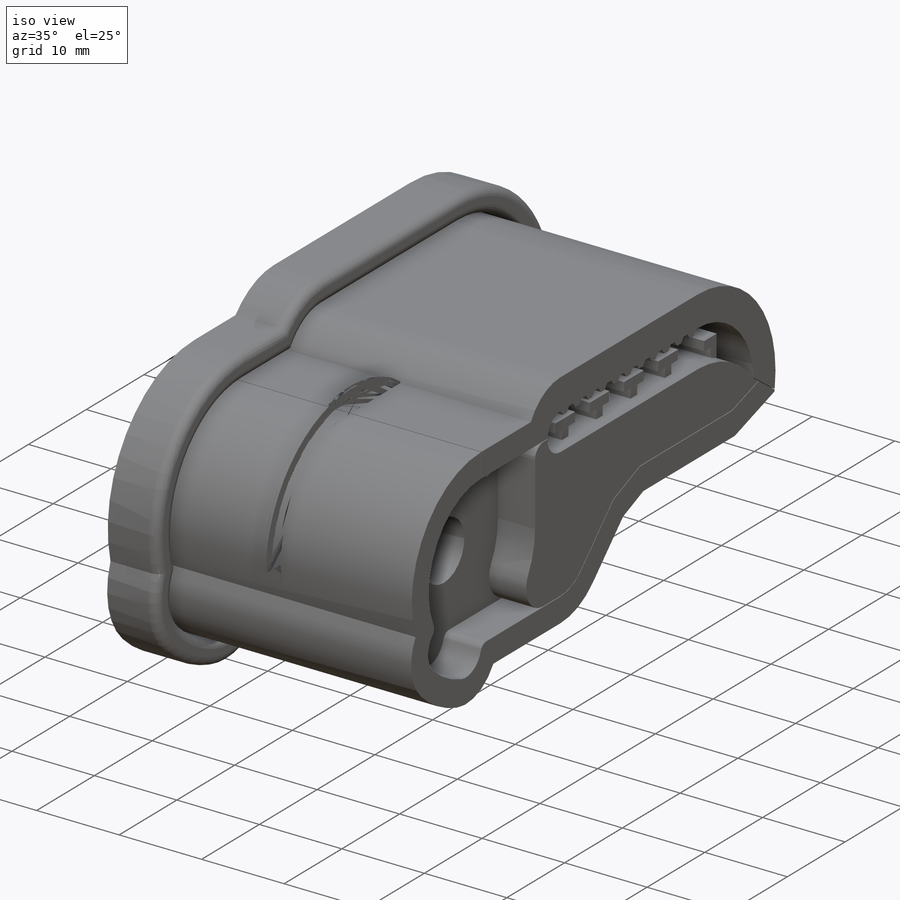
[diagram: iso view]
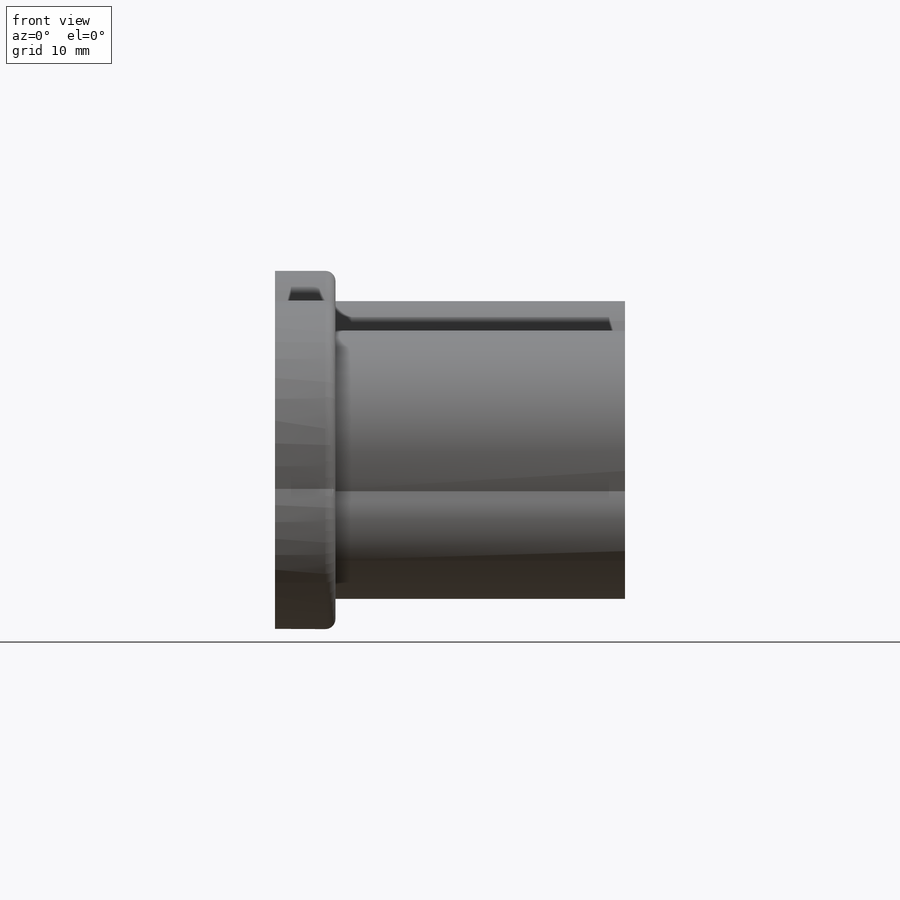
[diagram: front view]
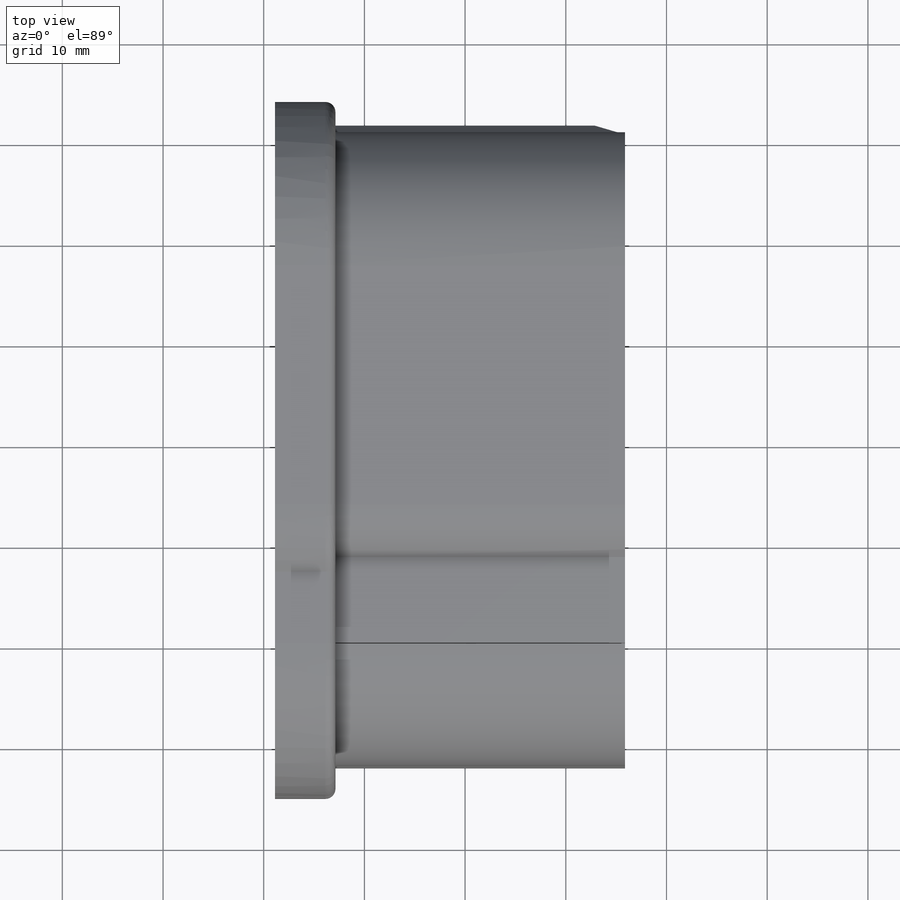
[diagram: top view]
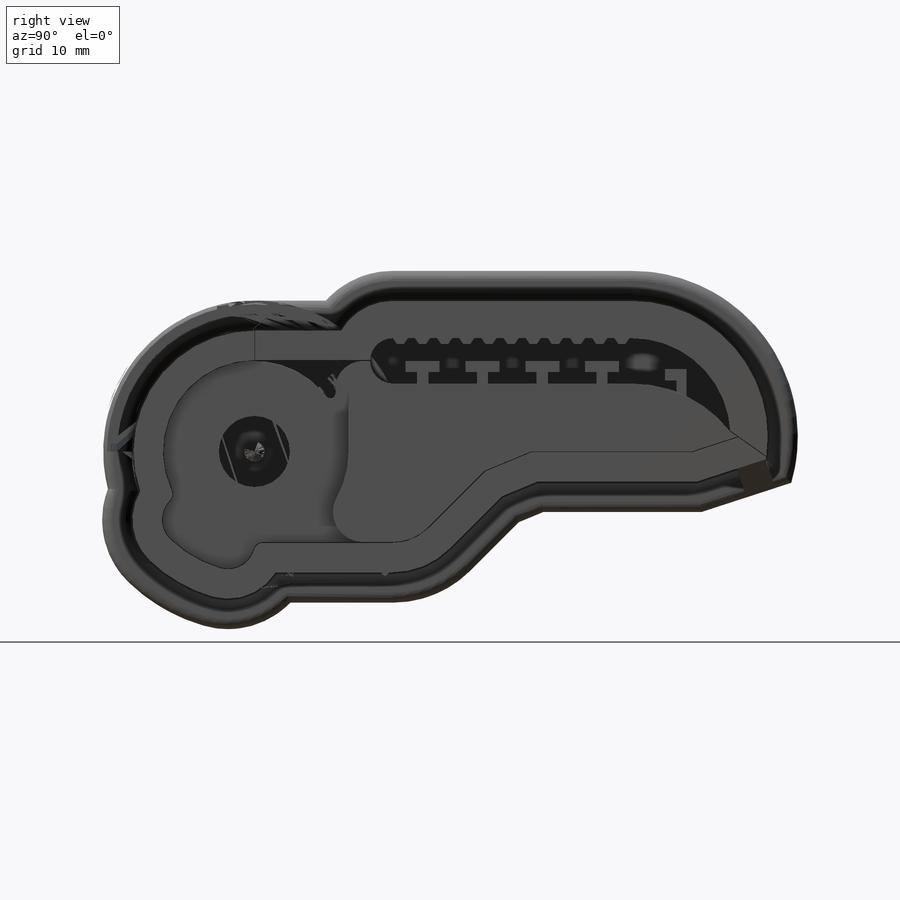
[diagram: right view]
SOLIDWORKS PART (.sldprt)
format: sldprt  version: not decoded by parser v0  size: 3,277,824 bytes
history: native  units: mm
features: sketch x26, cut_extrude x14, extrude x12, mirror x4, boolean_combine x2, material x1, fillet x1, chamfer x1 + 2 further entries (+26 scaffold rows collapsed; 10 parser-record rows omitted)
feature tree (99):
  scaffold x26  (default folders/planes/origin — collapsed)
  material  "ABS"
  "params_finger_t42"
  parser-record x10  (decoder bookkeeping rows leaked as tree rows — omitted from the tree; the rows remain in map.json)
  "params_print"
  sketch  "Sketch1"  dims[D2=6.35mm D1=37.5mm D3=18.0mm]
  extrude  "Finger Frame"  Depth=31.75mm
  sketch  "Sketch2"  dims[D1=0.35mm]
  cut_extrude  "Clearance - Side 1"  Depth=4.5mm
  fillet  "Contouring - Side 1"  Radius=3mm
  sketch  "Sketch17"
  cut_extrude  "Clearance - Travel 1"  Depth=4.5mm
  mirror  "Mirror - Side 2"
  sketch  "Sketch3"  dims[D1=2.95mm]
  extrude  "Finger Pad Outline"  [1 undecoded]
  sketch  "Sketch4"  dims[c1.D1=5.0mm c1.D2=~10.615691mm c2.D2=70.0deg c3.D2=9.5776mm c4.D2=45.0deg]
  cut_extrude  "Finger Outline"  [1 undecoded]
  sketch  "Sketch5"  dims[D2=0.7mm D1=0.7mm]
  cut_extrude  "Cavity - Fingerpad"  [1 undecoded]
  sketch  "Sketch7"
  extrude  "Pad Hooks"  Depth=28.75mm
  sketch  "Sketch8"  dims[D1=~23.755441mm D2=0.7mm D3=1.5mm D5=2.2mm D4=11.0]
  extrude  "Pad Ridges"  [1 undecoded]
  sketch  "Sketch9"  dims[c1.D1=1.0mm c1.D2=~0.536196mm c2.D2=150.0deg]
  cut_extrude  "Clearance - Joint Endpoint"  [1 undecoded]
  sketch  "Sketch10"  dims[D1=16.0mm]
  cut_extrude  "Tendon Track"  Depth=0.2mm
  chamfer  "Tendon Track Chamfer"  Distance=1mm Angle=45deg
  sketch  "Sketch11"  dims[D1=3.7mm]
  cut_extrude  "Clearance - Distal Insert"  Depth=4mm
  sketch  "Sketch12"  dims[c1.D3=9.0mm c1.D1=9.0mm c2.D1=45.0deg c2.D2=9.0mm c3.D2=15.0deg c3.D3=3.0mm]
  extrude  "Hard Stop"  [1 undecoded]
  sketch  "Sketch25"  dims[D1=0.35mm]
  cut_extrude  "Clearance - Free Joint"  [1 undecoded]
  mirror  "Contouring"
  mirror  "Finger Contouring"
  sketch  "Sketch13"  dims[D1=5.0mm]
  extrude  "Base Insert"  [1 undecoded]
  sketch  "Sketch14"  dims[D1=3.7mm]
  cut_extrude  "Clearance - Tendon Insert"  Depth=4.5mm
  sketch  "Sketch26"  dims[D1=5.0mm]
  cut_extrude  "Clearance - M2 Distal Joint Inserts"  [1 undecoded]
  sketch  "Sketch28"
  cut_extrude  "Tendon Slot"  Depth=2mm
  sketch  "Sketch29"
  extrude  "Center Cover"  [1 undecoded]
  sketch  "Sketch15"  dims[D1=0.0mm]
  extrude  "Pad Material"  [1 undecoded]
  sketch  "Sketch16"  dims[D1=0.0mm]
  cut_extrude  "Wall Removal"  [1 undecoded]
  sketch  "Sketch18"  dims[c1.D1=0.0mm c1.D2=0.0mm c2.D1=6.0mm]
  extrude  "Mold Base"  Depth=3mm
  sketch  "Sketch19"  dims[D1=3.0mm]
  extrude  "Mold Outer"  [1 undecoded]
  sketch  "Sketch20"  dims[D1=0.0mm D2=0.075mm]
  cut_extrude  "Clearance - Inner Mold"  [1 undecoded]
  boolean_combine  "Combine - Mold"
  sketch  "Sketch22"
  cut_extrude  "Mold Split"  [1 undecoded]
  sketch  "Sketch23"  dims[D1=0.0mm D2=2.85mm]
  extrude  "Mold Outermost"  Depth=3mm
  mirror  "Print Clearances - Mold Outer Lip"
  sketch  "Sketch24"  dims[D1=3.0mm]
  extrude  "Mold Tab"  Depth=25.75mm
  boolean_combine  "Mold Tab Chamfer"
decode coverage: 34 of 60 modeling features carry decoded parameters; 2 rows unclassified (native names shown)
note: ~ marks probable driven/reference dimensions
note: 15 parameter values undecoded
summary: no parameter record found for 15 features
note: suppression state not decoded; provenance and decode notes live in map.json
